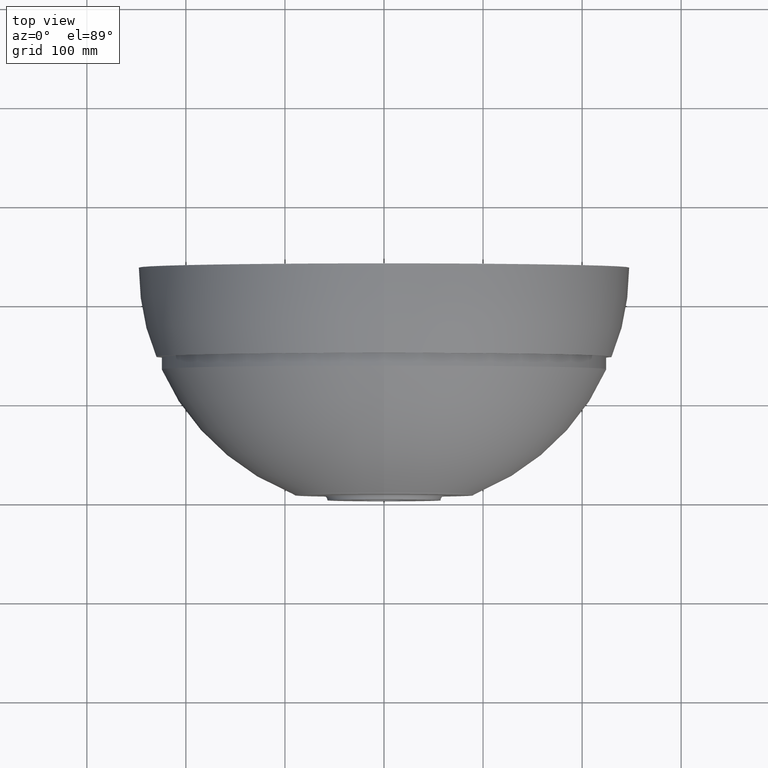
[diagram: clean part render]
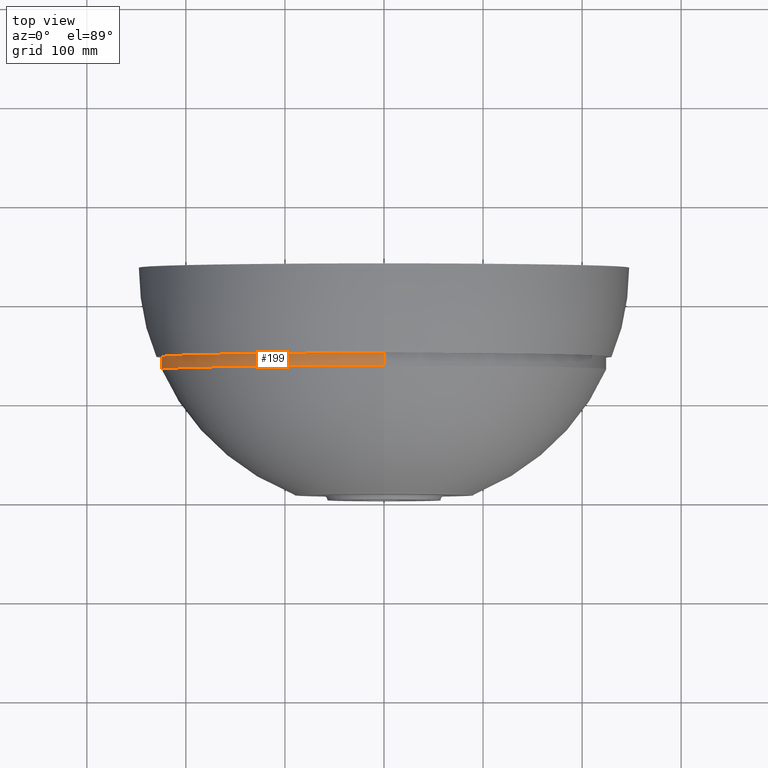
[diagram: same view with one face highlighted and labeled with its STEP entity id]
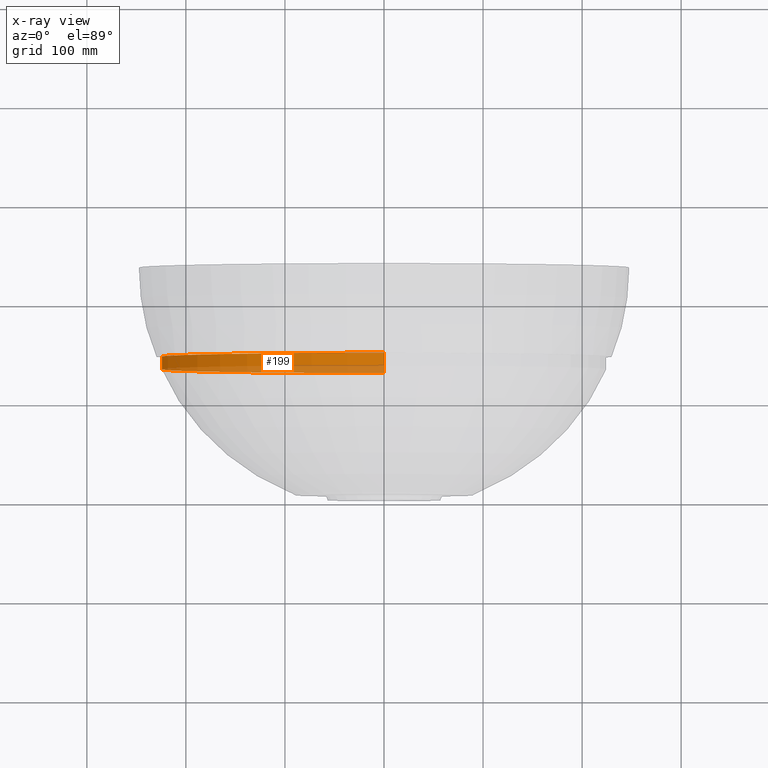
[diagram: x-ray of the same camera — body ghosted, the highlighted face saturated]
A machine part, top view. The second image highlights one B-rep face of the part: STEP entity #199.
The next image is the same camera in x-ray: the body ghosted, the highlighted face saturated — about 32% of this face is hidden behind the body in this view.
In plain terms, the highlighted cylindrical surface (partial cylindrical patch) has radius 225 mm, axis along (-0, -1, -0).
Its self-contained STEP definition (entity closure, byte-faithful):
#1 = CIRCLE ( 'NONE', #137, 225.0000000000000000 ) ;
#41 = VERTEX_POINT ( 'NONE', #474 ) ;
#42 = ORIENTED_EDGE ( 'NONE', *, *, #77, .F. ) ;
#48 = LINE ( 'NONE', #507, #378 ) ;
#77 = EDGE_CURVE ( 'NONE', #304, #168, #586, .T. ) ;
#81 = CARTESIAN_POINT ( 'NONE',  ( 0.0000000000000000000, 145.0000000000000000, 0.0000000000000000000 ) ) ;
#118 = DIRECTION ( 'NONE',  ( 0.0000000000000000000, 0.0000000000000000000, -1.000000000000000000 ) ) ;
#119 = DIRECTION ( 'NONE',  ( -0.0000000000000000000, -1.000000000000000000, -0.0000000000000000000 ) ) ;
#137 = AXIS2_PLACEMENT_3D ( 'NONE', #81, #119, #118 ) ;
#163 = VECTOR ( 'NONE', #446, 1000.000000000000000 ) ;
#166 = CYLINDRICAL_SURFACE ( 'NONE', #520, 224.9999999999999700 ) ;
#168 = VERTEX_POINT ( 'NONE', #416 ) ;
#194 = EDGE_CURVE ( 'NONE', #291, #168, #431, .T. ) ;
#195 = ORIENTED_EDGE ( 'NONE', *, *, #194, .T. ) ;
#199 = ADVANCED_FACE ( 'NONE', ( #594 ), #166, .T. ) ;
#268 = EDGE_LOOP ( 'NONE', ( #549, #599, #195, #42 ) ) ;
#291 = VERTEX_POINT ( 'NONE', #426 ) ;
#304 = VERTEX_POINT ( 'NONE', #573 ) ;
#313 = AXIS2_PLACEMENT_3D ( 'NONE', #575, #580, #531 ) ;
#378 = VECTOR ( 'NONE', #562, 1000.000000000000000 ) ;
#416 = CARTESIAN_POINT ( 'NONE',  ( 0.0000000000000000000, 132.3231030175650500, -224.9999999999999700 ) ) ;
#424 = EDGE_CURVE ( 'NONE', #41, #304, #48, .T. ) ;
#425 = CARTESIAN_POINT ( 'NONE',  ( 0.0000000000000000000, 0.0000000000000000000, -224.9999999999999700 ) ) ;
#426 = CARTESIAN_POINT ( 'NONE',  ( 0.0000000000000000000, 145.0000000000000000, -225.0000000000000000 ) ) ;
#431 = LINE ( 'NONE', #425, #163 ) ;
#435 = DIRECTION ( 'NONE',  ( 0.0000000000000000000, 0.0000000000000000000, -1.000000000000000000 ) ) ;
#446 = DIRECTION ( 'NONE',  ( -0.0000000000000000000, -1.000000000000000000, -0.0000000000000000000 ) ) ;
#456 = DIRECTION ( 'NONE',  ( -0.0000000000000000000, -1.000000000000000000, -0.0000000000000000000 ) ) ;
#459 = CARTESIAN_POINT ( 'NONE',  ( 0.0000000000000000000, 0.0000000000000000000, 0.0000000000000000000 ) ) ;
#468 = EDGE_CURVE ( 'NONE', #41, #291, #1, .T. ) ;
#474 = CARTESIAN_POINT ( 'NONE',  ( 2.755455298081544900E-014, 145.0000000000000000, 225.0000000000000300 ) ) ;
#507 = CARTESIAN_POINT ( 'NONE',  ( 2.755455298081544600E-014, 0.0000000000000000000, 224.9999999999999700 ) ) ;
#520 = AXIS2_PLACEMENT_3D ( 'NONE', #459, #456, #435 ) ;
#531 = DIRECTION ( 'NONE',  ( 0.0000000000000000000, 0.0000000000000000000, -1.000000000000000000 ) ) ;
#549 = ORIENTED_EDGE ( 'NONE', *, *, #424, .F. ) ;
#562 = DIRECTION ( 'NONE',  ( -0.0000000000000000000, -1.000000000000000000, -0.0000000000000000000 ) ) ;
#573 = CARTESIAN_POINT ( 'NONE',  ( 2.755455298081544300E-014, 132.3231030175650500, 224.9999999999999700 ) ) ;
#575 = CARTESIAN_POINT ( 'NONE',  ( 0.0000000000000000000, 132.3231030175650200, 0.0000000000000000000 ) ) ;
#580 = DIRECTION ( 'NONE',  ( -0.0000000000000000000, -1.000000000000000000, -0.0000000000000000000 ) ) ;
#586 = CIRCLE ( 'NONE', #313, 224.9999999999999700 ) ;
#594 = FACE_OUTER_BOUND ( 'NONE', #268, .T. ) ;
#599 = ORIENTED_EDGE ( 'NONE', *, *, #468, .T. ) ;